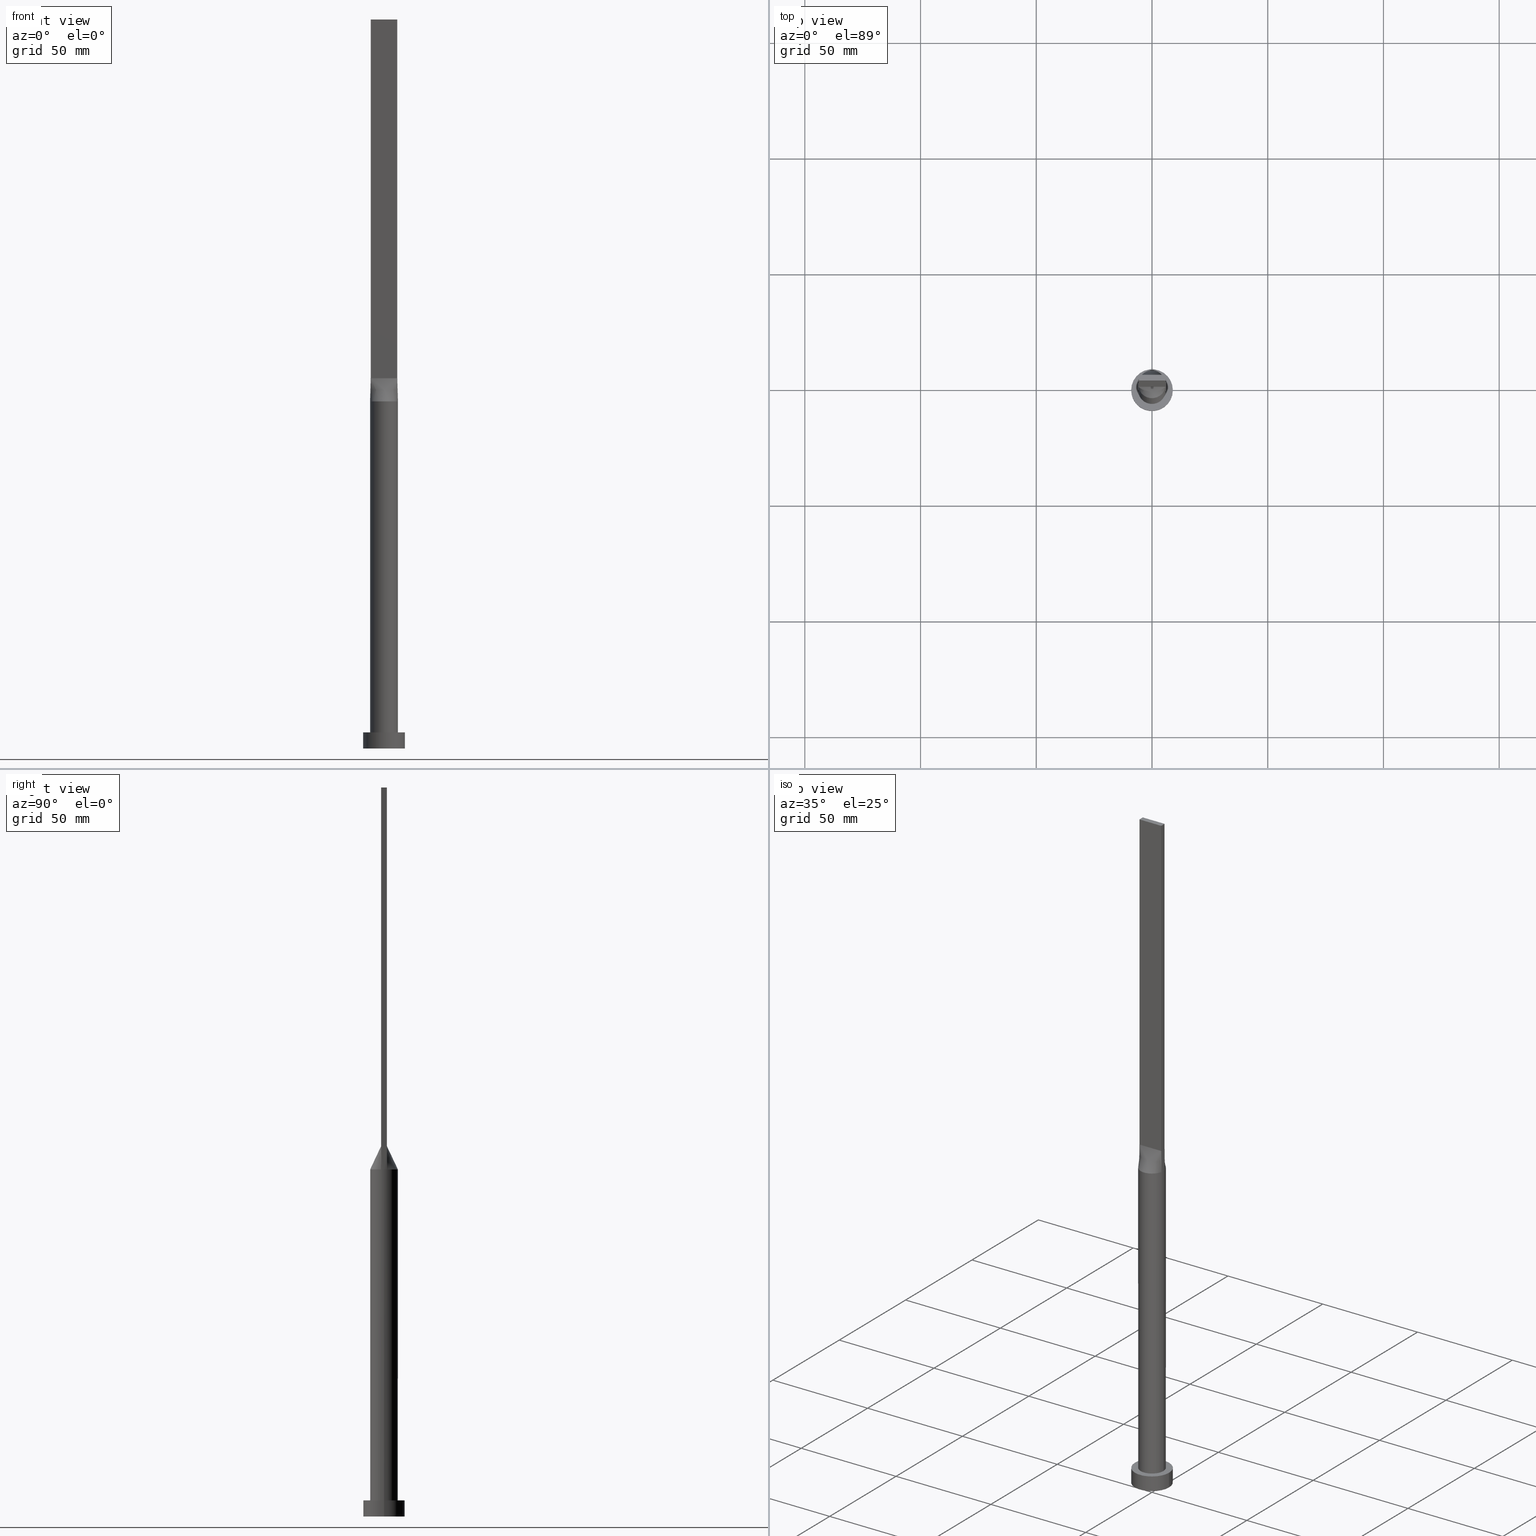
[diagram: canonical four-view strip — front | top / right | iso, engineering-drawing reading convention]
A machine part, canonical four-view strip (front | top / right | iso — engineering-drawing reading convention). The complete STEP part file that produces these views, byte-faithful:
ISO-10303-21;
HEADER;
FILE_DESCRIPTION (( 'STEP AP203' ),
    '1' );
FILE_NAME ('14fa.STEP',
    '2023-02-13T08:50:19',
    ( '' ),
    ( '' ),
    'SwSTEP 2.0',
    'SolidWorks 2019',
    '' );
FILE_SCHEMA (( 'CONFIG_CONTROL_DESIGN' ));
ENDSEC;

DATA;
#1 = UNCERTAINTY_MEASURE_WITH_UNIT (LENGTH_MEASURE( 1.000000000000000082E-05 ), #496, 'distance_accuracy_value', 'NONE');
#2 = B_SPLINE_SURFACE_WITH_KNOTS ( 'NONE', 3, 1, ( 
 ( #197, #153 ),
 ( #423, #15 ),
 ( #568, #446 ),
 ( #136, #311 ),
 ( #493, #316 ),
 ( #399, #82 ) ),
 .UNSPECIFIED., .F., .F., .F.,
 ( 4, 2, 4 ),
 ( 2, 2 ),
 ( 0.000000000000000000, 0.5000000000000000000, 1.000000000000000000 ),
 ( 0.000000000000000000, 1.000000000000000000 ),
 .UNSPECIFIED. ) ;
#3 = CARTESIAN_POINT ( 'NONE',  ( 0.000000000000000000, 0.000000000000000000, 7.000000000000000000 ) ) ;
#4 = CALENDAR_DATE ( 2023, 13, 2 ) ;
#5 = CARTESIAN_POINT ( 'NONE',  ( -6.000000000000000888, -0.4297636735037110300, 149.9999999999999716 ) ) ;
#6 = ADVANCED_FACE ( 'NONE', ( #400 ), #267, .F. ) ;
#7 = DIRECTION ( 'NONE',  ( -0.01130506171853810915, -0.002457622112725658253, 0.9999330755971076456 ) ) ;
#8 = CARTESIAN_POINT ( 'NONE',  ( 1.587717880441006368, -5.799853445840308375, 150.0000000000000568 ) ) ;
#9 = DIRECTION ( 'NONE',  ( 1.000000000000000000, 0.000000000000000000, -0.000000000000000000 ) ) ;
#10 = CARTESIAN_POINT ( 'NONE',  ( -5.750000000000000000, 1.250000000000000222, 160.0000000000000000 ) ) ;
#11 = CIRCLE ( 'NONE', #28, 6.000000000000000888 ) ;
#12 = CARTESIAN_POINT ( 'NONE',  ( -5.750000000000000000, -1.249999999999999112, 160.0000000000000000 ) ) ;
#13 = APPROVAL_STATUS ( 'not_yet_approved' ) ;
#14 = CARTESIAN_POINT ( 'NONE',  ( -1.966519853258819506, -5.681792876789066860, 150.0000000000000000 ) ) ;
#15 = CARTESIAN_POINT ( 'NONE',  ( 5.750000000000000000, -0.8333333333333317050, 159.9999999999999716 ) ) ;
#16 = ADVANCED_FACE ( 'NONE', ( #218 ), #185, .T. ) ;
#17 = CARTESIAN_POINT ( 'NONE',  ( -5.759267569818394605, -1.752014689090954480, 150.0000000000000000 ) ) ;
#18 = CARTESIAN_POINT ( 'NONE',  ( 1.966519853258819062, 5.681792876789066860, 150.0000000000000000 ) ) ;
#19 = ORIENTED_EDGE ( 'NONE', *, *, #465, .T. ) ;
#20 = CIRCLE ( 'NONE', #209, 6.000000000000000888 ) ;
#21 = VECTOR ( 'NONE', #221, 1000.000000000000000 ) ;
#22 = CARTESIAN_POINT ( 'NONE',  ( 5.750000000000000000, 1.250000000000000222, 160.0000000000000000 ) ) ;
#23 = ORIENTED_EDGE ( 'NONE', *, *, #42, .F. ) ;
#24 = CC_DESIGN_DATE_AND_TIME_ASSIGNMENT ( #132, #490, ( #470 ) ) ;
#25 = PLANE ( 'NONE',  #562 ) ;
#26 = CARTESIAN_POINT ( 'NONE',  ( -1.966519853258818173, 5.681792876789067748, 150.0000000000000000 ) ) ;
#27 = ORIENTED_EDGE ( 'NONE', *, *, #293, .T. ) ;
#28 = AXIS2_PLACEMENT_3D ( 'NONE', #3, #598, #52 ) ;
#29 = CARTESIAN_POINT ( 'NONE',  ( -5.038190104264874236, 3.311355329404293446, 149.9999999999999716 ) ) ;
#30 = SECURITY_CLASSIFICATION_LEVEL ( 'unclassified' ) ;
#31 = ORIENTED_EDGE ( 'NONE', *, *, #489, .F. ) ;
#32 = CARTESIAN_POINT ( 'NONE',  ( -5.863058183536805856, 1.274577865986265435, 150.0000000000000000 ) ) ;
#33 = DIRECTION ( 'NONE',  ( 0.000000000000000000, 0.000000000000000000, 1.000000000000000000 ) ) ;
#34 = CARTESIAN_POINT ( 'NONE',  ( 5.750000000000000000, 1.250000000000000222, 160.0000000000000000 ) ) ;
#35 = APPROVAL_STATUS ( 'not_yet_approved' ) ;
#36 = VERTEX_POINT ( 'NONE', #258 ) ;
#37 = AXIS2_PLACEMENT_3D ( 'NONE', #298, #110, #471 ) ;
#38 = VECTOR ( 'NONE', #374, 1000.000000000000000 ) ;
#39 = CARTESIAN_POINT ( 'NONE',  ( 2.395833333333330817, 1.250000000000000222, 159.9999999999999716 ) ) ;
#40 = MECHANICAL_CONTEXT ( 'NONE', #514, 'mechanical' ) ;
#41 = CARTESIAN_POINT ( 'NONE',  ( 0.000000000000000000, 0.000000000000000000, 150.0000000000000000 ) ) ;
#42 = EDGE_CURVE ( 'NONE', #318, #141, #302, .T. ) ;
#43 = CARTESIAN_POINT ( 'NONE',  ( 5.270833333333333037, 1.250000000000000222, 159.9999999999999716 ) ) ;
#44 = APPLICATION_PROTOCOL_DEFINITION ( 'international standard', 'config_control_design', 1994, #514 ) ;
#45 = ORIENTED_EDGE ( 'NONE', *, *, #206, .T. ) ;
#46 = CARTESIAN_POINT ( 'NONE',  ( 0.000000000000000000, 0.000000000000000000, 150.0000000000000000 ) ) ;
#47 = ORIENTED_EDGE ( 'NONE', *, *, #354, .F. ) ;
#48 = LINE ( 'NONE', #468, #476 ) ;
#49 = EDGE_CURVE ( 'NONE', #201, #250, #263, .T. ) ;
#50 = CARTESIAN_POINT ( 'NONE',  ( -5.953310891118034576, 0.8594154111126165452, 150.0000000000000568 ) ) ;
#51 = LOCAL_TIME ( 9, 50, 19.00000000000000000, #228 ) ;
#52 = DIRECTION ( 'NONE',  ( 1.000000000000000000, 0.000000000000000000, 0.000000000000000000 ) ) ;
#53 = CARTESIAN_POINT ( 'NONE',  ( -3.660567483996338911, -4.804269179125217448, 150.0000000000000284 ) ) ;
#54 = CARTESIAN_POINT ( 'NONE',  ( -3.037647739454305551, -5.231880992812856235, 150.0000000000000000 ) ) ;
#55 = CARTESIAN_POINT ( 'NONE',  ( -5.750000000000000000, -1.249999999999999112, 315.0000000000000000 ) ) ;
#56 = CARTESIAN_POINT ( 'NONE',  ( 0.8058840496048923496, -5.959001506938069070, 150.0000000000000000 ) ) ;
#57 = AXIS2_PLACEMENT_3D ( 'NONE', #348, #266, #450 ) ;
#58 = EDGE_CURVE ( 'NONE', #391, #299, #20, .T. ) ;
#59 = CARTESIAN_POINT ( 'NONE',  ( 5.863058287509796074, -1.274577880478293901, 150.0000000000000000 ) ) ;
#60 = CARTESIAN_POINT ( 'NONE',  ( 3.037647739454303331, -5.231880992812857123, 150.0000000000000568 ) ) ;
#61 = FACE_OUTER_BOUND ( 'NONE', #342, .T. ) ;
#62 = ORIENTED_EDGE ( 'NONE', *, *, #393, .T. ) ;
#63 = CARTESIAN_POINT ( 'NONE',  ( 0.000000000000000000, 0.000000000000000000, 7.000000000000000000 ) ) ;
#64 = EDGE_CURVE ( 'NONE', #480, #382, #85, .T. ) ;
#65 = EDGE_LOOP ( 'NONE', ( #83, #169 ) ) ;
#66 = AXIS2_PLACEMENT_3D ( 'NONE', #194, #231, #554 ) ;
#67 = CIRCLE ( 'NONE', #485, 6.000000000000000888 ) ;
#68 = FACE_OUTER_BOUND ( 'NONE', #159, .T. ) ;
#69 = ORIENTED_EDGE ( 'NONE', *, *, #268, .F. ) ;
#70 = LINE ( 'NONE', #527, #116 ) ;
#71 = ORIENTED_EDGE ( 'NONE', *, *, #157, .T. ) ;
#72 = DIRECTION ( 'NONE',  ( -1.000000000000000000, 0.000000000000000000, 0.000000000000000000 ) ) ;
#73 = ORIENTED_EDGE ( 'NONE', *, *, #570, .T. ) ;
#74 = AXIS2_PLACEMENT_3D ( 'NONE', #195, #517, #138 ) ;
#75 = ADVANCED_FACE ( 'NONE', ( #215 ), #397, .F. ) ;
#76 = CARTESIAN_POINT ( 'NONE',  ( -5.586898165904732316, 2.266054396544148197, 150.0000000000000000 ) ) ;
#77 = COORDINATED_UNIVERSAL_TIME_OFFSET ( 1, 0, .AHEAD. ) ;
#78 = DIRECTION ( 'NONE',  ( -1.000000000000000000, 0.000000000000000000, 0.000000000000000000 ) ) ;
#79 = CARTESIAN_POINT ( 'NONE',  ( 5.038190104264874236, 3.311355329404293002, 150.0000000000000284 ) ) ;
#80 = LINE ( 'NONE', #127, #428 ) ;
#81 = FACE_OUTER_BOUND ( 'NONE', #312, .T. ) ;
#82 = CARTESIAN_POINT ( 'NONE',  ( 5.750000000000000000, 1.250000000000000222, 160.0000000000000000 ) ) ;
#83 = ORIENTED_EDGE ( 'NONE', *, *, #64, .T. ) ;
#84 = EDGE_CURVE ( 'NONE', #500, #250, #80, .T. ) ;
#85 = CIRCLE ( 'NONE', #96, 9.000000000000000000 ) ;
#86 = CIRCLE ( 'NONE', #145, 6.000000000000000888 ) ;
#87 = CARTESIAN_POINT ( 'NONE',  ( -0.4029827085191223790, 5.999999999999998224, 150.0000000000000284 ) ) ;
#88 = VERTEX_POINT ( 'NONE', #491 ) ;
#89 = CARTESIAN_POINT ( 'NONE',  ( -1.197916666666668739, 1.250000000000000222, 160.0000000000000000 ) ) ;
#90 = DATE_AND_TIME ( #214, #264 ) ;
#91 = ORIENTED_EDGE ( 'NONE', *, *, #199, .F. ) ;
#92 = APPROVAL ( #499, 'NEUR�EN�' ) ;
#93 = DIRECTION ( 'NONE',  ( 1.000000000000000000, -5.656706986880892860E-17, 0.000000000000000000 ) ) ;
#94 = CARTESIAN_POINT ( 'NONE',  ( -5.750000000000000000, 0.4166666666666722363, 159.9999999999999716 ) ) ;
#95 = ORIENTED_EDGE ( 'NONE', *, *, #84, .F. ) ;
#96 = AXIS2_PLACEMENT_3D ( 'NONE', #454, #33, #590 ) ;
#97 = APPROVAL_DATE_TIME ( #416, #186 ) ;
#98 = CARTESIAN_POINT ( 'NONE',  ( -5.953310891118033688, -0.8594154111126154350, 150.0000000000000000 ) ) ;
#99 = AXIS2_PLACEMENT_3D ( 'NONE', #63, #430, #292 ) ;
#100 = DIRECTION ( 'NONE',  ( -0.000000000000000000, -0.000000000000000000, -1.000000000000000000 ) ) ;
#101 = CARTESIAN_POINT ( 'NONE',  ( 0.4029827085191214908, -6.000000000000000888, 150.0000000000000284 ) ) ;
#102 = CARTESIAN_POINT ( 'NONE',  ( 0.000000000000000000, 0.000000000000000000, 0.000000000000000000 ) ) ;
#103 = CARTESIAN_POINT ( 'NONE',  ( -5.750000000000000000, 1.250000000000000222, 160.0000000000000000 ) ) ;
#104 = EDGE_CURVE ( 'NONE', #250, #360, #176, .T. ) ;
#105 = CARTESIAN_POINT ( 'NONE',  ( -9.000000000000000000, 0.000000000000000000, 7.000000000000000000 ) ) ;
#106 = CARTESIAN_POINT ( 'NONE',  ( 0.4791666666666659635, -1.249999999999999556, 159.9999999999999716 ) ) ;
#107 = CIRCLE ( 'NONE', #475, 6.000000000000000888 ) ;
#108 = VECTOR ( 'NONE', #167, 1000.000000000000000 ) ;
#109 = DIRECTION ( 'NONE',  ( -0.000000000000000000, -0.000000000000000000, -1.000000000000000000 ) ) ;
#110 = DIRECTION ( 'NONE',  ( 0.000000000000000000, 0.000000000000000000, 1.000000000000000000 ) ) ;
#111 = ADVANCED_FACE ( 'NONE', ( #561, #236 ), #467, .T. ) ;
#112 = CARTESIAN_POINT ( 'NONE',  ( -5.586898165904732316, 2.266054396544148197, 150.0000000000000000 ) ) ;
#113 = ORIENTED_EDGE ( 'NONE', *, *, #58, .T. ) ;
#114 = CARTESIAN_POINT ( 'NONE',  ( -5.750000000000000000, 1.250000000000000222, 160.0000000000000000 ) ) ;
#115 = EDGE_LOOP ( 'NONE', ( #118, #27, #137, #69, #247 ) ) ;
#116 = VECTOR ( 'NONE', #251, 1000.000000000000000 ) ;
#117 = CARTESIAN_POINT ( 'NONE',  ( -4.659826596530312948, 3.842755878357679844, 150.0000000000000000 ) ) ;
#118 = ORIENTED_EDGE ( 'NONE', *, *, #551, .T. ) ;
#119 = CARTESIAN_POINT ( 'NONE',  ( -6.000000000000000888, 0.000000000000000000, 150.0000000000000000 ) ) ;
#120 = VERTEX_POINT ( 'NONE', #368 ) ;
#121 = ADVANCED_FACE ( 'NONE', ( #558 ), #413, .T. ) ;
#122 = LINE ( 'NONE', #310, #21 ) ;
#123 = CARTESIAN_POINT ( 'NONE',  ( -5.750000000000000000, 1.250000000000000222, 315.0000000000000000 ) ) ;
#124 = DIRECTION ( 'NONE',  ( -0.000000000000000000, -0.000000000000000000, -1.000000000000000000 ) ) ;
#125 = CC_DESIGN_SECURITY_CLASSIFICATION ( #303, ( #334 ) ) ;
#126 = DIRECTION ( 'NONE',  ( 1.000000000000000000, 0.000000000000000000, 0.000000000000000000 ) ) ;
#127 = CARTESIAN_POINT ( 'NONE',  ( -5.750000000000000000, 1.250000000000000222, 160.0000000000000000 ) ) ;
#128 = CARTESIAN_POINT ( 'NONE',  ( 4.791666666666666075, 1.250000000000000222, 159.9999999999999716 ) ) ;
#129 = CC_DESIGN_PERSON_AND_ORGANIZATION_ASSIGNMENT ( #407, #538, ( #470 ) ) ;
#130 = DIRECTION ( 'NONE',  ( 1.000000000000000000, 0.000000000000000000, -0.000000000000000000 ) ) ;
#131 = DIRECTION ( 'NONE',  ( -1.000000000000000000, 0.000000000000000000, 0.000000000000000000 ) ) ;
#132 = DATE_AND_TIME ( #305, #571 ) ;
#133 = CARTESIAN_POINT ( 'NONE',  ( 5.750000000000000000, -1.249999999999999778, 315.0000000000000000 ) ) ;
#134 = VECTOR ( 'NONE', #131, 1000.000000000000000 ) ;
#135 = CARTESIAN_POINT ( 'NONE',  ( -1.587717880441007035, 5.799853445840308375, 150.0000000000000568 ) ) ;
#136 = CARTESIAN_POINT ( 'NONE',  ( 6.000000000000000888, 0.4297636735037115296, 149.9999999999999716 ) ) ;
#137 = ORIENTED_EDGE ( 'NONE', *, *, #376, .T. ) ;
#138 = DIRECTION ( 'NONE',  ( 1.000000000000000000, 0.000000000000000000, -0.000000000000000000 ) ) ;
#139 = CARTESIAN_POINT ( 'NONE',  ( 5.038190104264874236, -3.311355329404293890, 149.9999999999999716 ) ) ;
#140 = ADVANCED_FACE ( 'NONE', ( #460 ), #147, .T. ) ;
#141 = VERTEX_POINT ( 'NONE', #521 ) ;
#142 = CARTESIAN_POINT ( 'NONE',  ( 0.000000000000000000, 0.000000000000000000, 315.0000000000000000 ) ) ;
#143 = CARTESIAN_POINT ( 'NONE',  ( -0.8058840496048947921, -5.959001506938068182, 150.0000000000000568 ) ) ;
#144 = DIRECTION ( 'NONE',  ( 0.000000000000000000, 0.000000000000000000, 1.000000000000000000 ) ) ;
#145 = AXIS2_PLACEMENT_3D ( 'NONE', #276, #421, #553 ) ;
#146 = CARTESIAN_POINT ( 'NONE',  ( -4.659826596530313836, -3.842755878357677179, 150.0000000000000284 ) ) ;
#147 = B_SPLINE_SURFACE_WITH_KNOTS ( 'NONE', 3, 1, ( 
 ( #504, #103 ),
 ( #50, #190 ),
 ( #414, #94 ),
 ( #5, #188 ),
 ( #98, #438 ),
 ( #335, #381 ) ),
 .UNSPECIFIED., .F., .F., .F.,
 ( 4, 2, 4 ),
 ( 2, 2 ),
 ( 0.000000000000000000, 0.5000000000000000000, 1.000000000000000000 ),
 ( 0.000000000000000000, 1.000000000000000000 ),
 .UNSPECIFIED. ) ;
#148 = CARTESIAN_POINT ( 'NONE',  ( 0.000000000000000000, 0.000000000000000000, 150.0000000000000000 ) ) ;
#149 = EDGE_CURVE ( 'NONE', #201, #391, #107, .T. ) ;
#150 = CARTESIAN_POINT ( 'NONE',  ( 5.270833333333333037, -1.249999999999999778, 159.9999999999999716 ) ) ;
#151 = CYLINDRICAL_SURFACE ( 'NONE', #275, 6.000000000000000888 ) ;
#152 = CARTESIAN_POINT ( 'NONE',  ( -4.791666666666666963, -1.249999999999999112, 160.0000000000000000 ) ) ;
#153 = CARTESIAN_POINT ( 'NONE',  ( 5.750000000000000000, -1.249999999999999778, 160.0000000000000000 ) ) ;
#154 = DIRECTION ( 'NONE',  ( 0.000000000000000000, 0.000000000000000000, 1.000000000000000000 ) ) ;
#155 = CLOSED_SHELL ( 'NONE', ( #383, #256, #16, #111, #535, #227, #121, #576, #140, #338, #75, #6, #420, #172, #528 ) ) ;
#156 = CC_DESIGN_APPROVAL ( #92, ( #470 ) ) ;
#157 = EDGE_CURVE ( 'NONE', #391, #120, #287, .T. ) ;
#158 = CARTESIAN_POINT ( 'NONE',  ( -0.4029827085191223790, 5.999999999999998224, 150.0000000000000284 ) ) ;
#159 = EDGE_LOOP ( 'NONE', ( #431, #405, #23, #178 ) ) ;
#160 = CARTESIAN_POINT ( 'NONE',  ( 5.759267569818392829, 1.752014689090955590, 150.0000000000000568 ) ) ;
#161 = VERTEX_POINT ( 'NONE', #162 ) ;
#162 = CARTESIAN_POINT ( 'NONE',  ( -9.000000000000000000, 0.000000000000000000, 0.000000000000000000 ) ) ;
#163 = ORIENTED_EDGE ( 'NONE', *, *, #559, .T. ) ;
#164 = CC_DESIGN_APPROVAL ( #436, ( #334 ) ) ;
#165 = LINE ( 'NONE', #22, #587 ) ;
#166 = ORIENTED_EDGE ( 'NONE', *, *, #199, .T. ) ;
#167 = DIRECTION ( 'NONE',  ( -0.000000000000000000, -0.000000000000000000, -1.000000000000000000 ) ) ;
#168 =( NAMED_UNIT ( * ) PLANE_ANGLE_UNIT ( ) SI_UNIT ( $, .RADIAN. ) );
#169 = ORIENTED_EDGE ( 'NONE', *, *, #277, .T. ) ;
#170 = CARTESIAN_POINT ( 'NONE',  ( -5.270833333333333925, 1.250000000000000222, 159.9999999999999716 ) ) ;
#171 = ORIENTED_EDGE ( 'NONE', *, *, #426, .T. ) ;
#172 = ADVANCED_FACE ( 'NONE', ( #68 ), #25, .F. ) ;
#173 = AXIS2_PLACEMENT_3D ( 'NONE', #102, #144, #189 ) ;
#174 = CARTESIAN_POINT ( 'NONE',  ( 0.4791666666666637986, 1.250000000000000222, 159.9999999999999716 ) ) ;
#175 = B_SPLINE_SURFACE_WITH_KNOTS ( 'NONE', 3, 1, ( 
 ( #304, #34 ),
 ( #445, #43 ),
 ( #456, #128 ),
 ( #79, #406 ),
 ( #223, #492 ),
 ( #216, #39 ),
 ( #259, #588 ),
 ( #307, #532 ),
 ( #453, #594 ),
 ( #177, #174 ),
 ( #396, #179 ),
 ( #87, #358 ),
 ( #350, #403 ),
 ( #135, #498 ),
 ( #540, #89 ),
 ( #591, #211 ),
 ( #392, #581 ),
 ( #345, #353 ),
 ( #585, #301 ),
 ( #76, #255 ),
 ( #442, #170 ),
 ( #32, #537 ) ),
 .UNSPECIFIED., .F., .F., .F.,
 ( 4, 2, 2, 2, 2, 2, 2, 2, 2, 2, 4 ),
 ( 2, 2 ),
 ( 0.000000000000000000, 0.1249999999999999722, 0.2499999999999999445, 0.3749999999999999445, 0.4374999999999999445, 0.4999999999999998890, 0.5624999999999998890, 0.6249999999999998890, 0.7499999999999997780, 0.8749999999999998890, 1.000000000000000000 ),
 ( 0.000000000000000000, 1.000000000000000000 ),
 .UNSPECIFIED. ) ;
#176 = LINE ( 'NONE', #10, #437 ) ;
#177 = CARTESIAN_POINT ( 'NONE',  ( 0.8058840496048939039, 5.959001506938069070, 150.0000000000000000 ) ) ;
#178 = ORIENTED_EDGE ( 'NONE', *, *, #321, .T. ) ;
#179 = CARTESIAN_POINT ( 'NONE',  ( 0.2395833333333302617, 1.250000000000000222, 160.0000000000000000 ) ) ;
#180 = APPROVAL_DATE_TIME ( #596, #436 ) ;
#181 = ORIENTED_EDGE ( 'NONE', *, *, #354, .T. ) ;
#182 = VECTOR ( 'NONE', #93, 1000.000000000000000 ) ;
#183 = LINE ( 'NONE', #461, #563 ) ;
#184 = PERSON_AND_ORGANIZATION ( #248, #601 ) ;
#185 = CYLINDRICAL_SURFACE ( 'NONE', #274, 9.000000000000000000 ) ;
#186 = APPROVAL ( #13, 'NEUR�EN�' ) ;
#187 = DIRECTION ( 'NONE',  ( 0.000000000000000000, 0.000000000000000000, 1.000000000000000000 ) ) ;
#188 = CARTESIAN_POINT ( 'NONE',  ( -5.750000000000000000, -0.4166666666666609675, 159.9999999999999716 ) ) ;
#189 = DIRECTION ( 'NONE',  ( 1.000000000000000000, 0.000000000000000000, 0.000000000000000000 ) ) ;
#190 = CARTESIAN_POINT ( 'NONE',  ( -5.750000000000000000, 0.8333333333333370341, 159.9999999999999716 ) ) ;
#191 = EDGE_CURVE ( 'NONE', #161, #483, #291, .T. ) ;
#192 = DIRECTION ( 'NONE',  ( 1.000000000000000000, 0.000000000000000000, 0.000000000000000000 ) ) ;
#193 = VECTOR ( 'NONE', #473, 1000.000000000000000 ) ;
#194 = CARTESIAN_POINT ( 'NONE',  ( 0.000000000000000000, 0.000000000000000000, 7.000000000000000000 ) ) ;
#195 = CARTESIAN_POINT ( 'NONE',  ( 0.000000000000000000, 0.000000000000000000, 0.000000000000000000 ) ) ;
#196 = CARTESIAN_POINT ( 'NONE',  ( -1.197916666666666075, -1.249999999999999334, 159.9999999999999716 ) ) ;
#197 = CARTESIAN_POINT ( 'NONE',  ( 5.863058183536806744, -1.274577865986263436, 150.0000000000000000 ) ) ;
#198 = CARTESIAN_POINT ( 'NONE',  ( 1.916666666666665408, -1.249999999999999778, 159.9999999999999716 ) ) ;
#199 = EDGE_CURVE ( 'NONE', #502, #201, #455, .T. ) ;
#200 = DIRECTION ( 'NONE',  ( 0.000000000000000000, 0.000000000000000000, 1.000000000000000000 ) ) ;
#201 = VERTEX_POINT ( 'NONE', #339 ) ;
#202 = DIRECTION ( 'NONE',  ( 1.000000000000000000, 0.000000000000000000, 0.000000000000000000 ) ) ;
#203 = ORIENTED_EDGE ( 'NONE', *, *, #402, .F. ) ;
#204 = CARTESIAN_POINT ( 'NONE',  ( 1.587717880441007479, 5.799853445840305710, 150.0000000000000000 ) ) ;
#205 = EDGE_LOOP ( 'NONE', ( #472, #113, #337, #365, #352 ) ) ;
#206 = EDGE_CURVE ( 'NONE', #294, #318, #70, .T. ) ;
#207 = CARTESIAN_POINT ( 'NONE',  ( 0.000000000000000000, 0.000000000000000000, 150.0000000000000000 ) ) ;
#208 = ORIENTED_EDGE ( 'NONE', *, *, #277, .F. ) ;
#209 = AXIS2_PLACEMENT_3D ( 'NONE', #41, #447, #444 ) ;
#210 = AXIS2_PLACEMENT_3D ( 'NONE', #207, #524, #72 ) ;
#211 = CARTESIAN_POINT ( 'NONE',  ( -1.916666666666668073, 1.250000000000000222, 160.0000000000000000 ) ) ;
#212 = ORIENTED_EDGE ( 'NONE', *, *, #313, .T. ) ;
#213 = CARTESIAN_POINT ( 'NONE',  ( 0.000000000000000000, 0.000000000000000000, 150.0000000000000000 ) ) ;
#214 = CALENDAR_DATE ( 2023, 13, 2 ) ;
#215 = FACE_OUTER_BOUND ( 'NONE', #290, .T. ) ;
#216 = CARTESIAN_POINT ( 'NONE',  ( 3.660567483996337579, 4.804269179125218336, 150.0000000000000284 ) ) ;
#217 = COORDINATED_UNIVERSAL_TIME_OFFSET ( 1, 0, .AHEAD. ) ;
#218 = FACE_OUTER_BOUND ( 'NONE', #451, .T. ) ;
#219 = VECTOR ( 'NONE', #432, 1000.000000000000000 ) ;
#220 = VECTOR ( 'NONE', #257, 1000.000000000000000 ) ;
#221 = DIRECTION ( 'NONE',  ( -0.000000000000000000, -0.000000000000000000, -1.000000000000000000 ) ) ;
#222 = DIRECTION ( 'NONE',  ( 0.000000000000000000, 1.000000000000000000, 0.000000000000000000 ) ) ;
#223 = CARTESIAN_POINT ( 'NONE',  ( 4.659826596530313836, 3.842755878357678068, 150.0000000000000284 ) ) ;
#224 = APPLICATION_PROTOCOL_DEFINITION ( 'international standard', 'config_control_design', 1994, #546 ) ;
#225 = ORIENTED_EDGE ( 'NONE', *, *, #49, .T. ) ;
#226 = DIRECTION ( 'NONE',  ( 0.000000000000000000, 0.000000000000000000, 1.000000000000000000 ) ) ;
#227 = ADVANCED_FACE ( 'NONE', ( #61 ), #246, .T. ) ;
#228 = COORDINATED_UNIVERSAL_TIME_OFFSET ( 1, 0, .AHEAD. ) ;
#229 = ORIENTED_EDGE ( 'NONE', *, *, #501, .F. ) ;
#230 = CIRCLE ( 'NONE', #173, 9.000000000000000000 ) ;
#231 = DIRECTION ( 'NONE',  ( 0.000000000000000000, 0.000000000000000000, 1.000000000000000000 ) ) ;
#232 = FACE_OUTER_BOUND ( 'NONE', #288, .T. ) ;
#233 = CARTESIAN_POINT ( 'NONE',  ( -5.586898165904734093, -2.266054396544145533, 150.0000000000000000 ) ) ;
#234 = CC_DESIGN_PERSON_AND_ORGANIZATION_ASSIGNMENT ( #443, #582, ( #357 ) ) ;
#235 = DIRECTION ( 'NONE',  ( 0.000000000000000000, 0.000000000000000000, 1.000000000000000000 ) ) ;
#236 = FACE_OUTER_BOUND ( 'NONE', #65, .T. ) ;
#237 = DIRECTION ( 'NONE',  ( -1.000000000000000000, 5.656706986880894093E-17, 0.000000000000000000 ) ) ;
#238 = AXIS2_PLACEMENT_3D ( 'NONE', #600, #130, #545 ) ;
#239 = LOCAL_TIME ( 9, 50, 19.00000000000000000, #375 ) ;
#240 = CARTESIAN_POINT ( 'NONE',  ( 1.197916666666666075, -1.249999999999999778, 159.9999999999999716 ) ) ;
#241 = FACE_OUTER_BOUND ( 'NONE', #115, .T. ) ;
#242 = CARTESIAN_POINT ( 'NONE',  ( 0.9583333333333325932, -1.249999999999999556, 159.9999999999999716 ) ) ;
#243 = EDGE_CURVE ( 'NONE', #36, #88, #244, .T. ) ;
#244 = LINE ( 'NONE', #425, #193 ) ;
#245 = ORIENTED_EDGE ( 'NONE', *, *, #393, .F. ) ;
#246 = CYLINDRICAL_SURFACE ( 'NONE', #210, 6.000000000000000888 ) ;
#247 = ORIENTED_EDGE ( 'NONE', *, *, #448, .F. ) ;
#248 = PERSON ( 'NEUR�EN�', 'NEUR�EN�', 'NEUR�EN�', ('NEUR�EN�'), ('NEUR�EN�'), ('NEUR�EN�') ) ;
#249 = DIRECTION ( 'NONE',  ( 0.000000000000000000, 0.000000000000000000, 1.000000000000000000 ) ) ;
#250 = VERTEX_POINT ( 'NONE', #114 ) ;
#251 = DIRECTION ( 'NONE',  ( 1.000000000000000000, -5.656706986880892860E-17, 0.000000000000000000 ) ) ;
#252 = ORIENTED_EDGE ( 'NONE', *, *, #191, .F. ) ;
#253 = FACE_OUTER_BOUND ( 'NONE', #410, .T. ) ;
#254 = ORIENTED_EDGE ( 'NONE', *, *, #293, .F. ) ;
#255 = CARTESIAN_POINT ( 'NONE',  ( -4.791666666666666963, 1.250000000000000222, 159.9999999999999716 ) ) ;
#256 = ADVANCED_FACE ( 'NONE', ( #253 ), #389, .T. ) ;
#257 = DIRECTION ( 'NONE',  ( -0.000000000000000000, -0.000000000000000000, -1.000000000000000000 ) ) ;
#258 = CARTESIAN_POINT ( 'NONE',  ( 6.000000000000000888, 6.923844231069229210E-17, 149.9999999999999716 ) ) ;
#259 = CARTESIAN_POINT ( 'NONE',  ( 3.037647739454305995, 5.231880992812856235, 150.0000000000000568 ) ) ;
#260 = ORIENTED_EDGE ( 'NONE', *, *, #570, .F. ) ;
#261 = DIRECTION ( 'NONE',  ( 1.000000000000000000, 0.000000000000000000, 0.000000000000000000 ) ) ;
#262 = LINE ( 'NONE', #123, #220 ) ;
#263 = LINE ( 'NONE', #487, #388 ) ;
#264 = LOCAL_TIME ( 9, 50, 19.00000000000000000, #394 ) ;
#265 = DIRECTION ( 'NONE',  ( 0.000000000000000000, 0.000000000000000000, 1.000000000000000000 ) ) ;
#266 = DIRECTION ( 'NONE',  ( 0.000000000000000000, 0.000000000000000000, 1.000000000000000000 ) ) ;
#267 = PLANE ( 'NONE',  #238 ) ;
#268 = EDGE_CURVE ( 'NONE', #549, #500, #165, .T. ) ;
#269 = CARTESIAN_POINT ( 'NONE',  ( -9.000000000000000000, 0.000000000000000000, 7.000000000000000000 ) ) ;
#270 = ORIENTED_EDGE ( 'NONE', *, *, #64, .F. ) ;
#271 = CARTESIAN_POINT ( 'NONE',  ( 5.750000000000000000, 1.250000000000000222, 160.0000000000000000 ) ) ;
#272 = CARTESIAN_POINT ( 'NONE',  ( -1.916666666666666075, -1.249999999999999334, 159.9999999999999716 ) ) ;
#273 = EDGE_LOOP ( 'NONE', ( #254, #474, #580, #408, #597, #91 ) ) ;
#274 = AXIS2_PLACEMENT_3D ( 'NONE', #364, #124, #78 ) ;
#275 = AXIS2_PLACEMENT_3D ( 'NONE', #148, #100, #466 ) ;
#276 = CARTESIAN_POINT ( 'NONE',  ( 0.000000000000000000, 0.000000000000000000, 150.0000000000000000 ) ) ;
#277 = EDGE_CURVE ( 'NONE', #382, #480, #429, .T. ) ;
#278 = CARTESIAN_POINT ( 'NONE',  ( -0.4029827085191233227, -6.000000000000000000, 150.0000000000000568 ) ) ;
#279 = DIRECTION ( 'NONE',  ( -0.01130506171853802241, 0.002457622112726070250, 0.9999330755971076456 ) ) ;
#280 = CARTESIAN_POINT ( 'NONE',  ( 5.750000000000000000, -1.249999999999999778, 160.0000000000000000 ) ) ;
#281 = CARTESIAN_POINT ( 'NONE',  ( -5.750000000000000000, -1.249999999999999112, 315.0000000000000000 ) ) ;
#282 = DIRECTION ( 'NONE',  ( 0.000000000000000000, -1.000000000000000000, 0.000000000000000000 ) ) ;
#283 = CARTESIAN_POINT ( 'NONE',  ( 5.750000000000000000, -1.249999999999999778, 160.0000000000000000 ) ) ;
#284 = CIRCLE ( 'NONE', #361, 6.000000000000000888 ) ;
#285 = CARTESIAN_POINT ( 'NONE',  ( -5.750000000000000000, -1.249999999999999112, 160.0000000000000000 ) ) ;
#286 = CC_DESIGN_DATE_AND_TIME_ASSIGNMENT ( #557, #599, ( #303 ) ) ;
#287 = LINE ( 'NONE', #119, #219 ) ;
#288 = EDGE_LOOP ( 'NONE', ( #19, #395, #523, #181 ) ) ;
#289 = CARTESIAN_POINT ( 'NONE',  ( -5.759267569818392829, 1.752014689090956256, 150.0000000000000000 ) ) ;
#290 = EDGE_LOOP ( 'NONE', ( #433, #525, #344, #212 ) ) ;
#291 = CIRCLE ( 'NONE', #37, 9.000000000000000000 ) ;
#292 = DIRECTION ( 'NONE',  ( -1.000000000000000000, 0.000000000000000000, 0.000000000000000000 ) ) ;
#293 = EDGE_CURVE ( 'NONE', #36, #502, #284, .T. ) ;
#294 = VERTEX_POINT ( 'NONE', #449 ) ;
#295 = CARTESIAN_POINT ( 'NONE',  ( 4.659826596530313836, 3.842755878357678068, 150.0000000000000284 ) ) ;
#296 = ADVANCED_BREP_SHAPE_REPRESENTATION ( '14fa', ( #333, #57 ), #519 ) ;
#297 = EDGE_LOOP ( 'NONE', ( #427, #171, #45, #578 ) ) ;
#298 = CARTESIAN_POINT ( 'NONE',  ( 0.000000000000000000, 0.000000000000000000, 0.000000000000000000 ) ) ;
#299 = VERTEX_POINT ( 'NONE', #484 ) ;
#300 = EDGE_CURVE ( 'NONE', #480, #161, #543, .T. ) ;
#301 = CARTESIAN_POINT ( 'NONE',  ( -3.833333333333333481, 1.250000000000000222, 159.9999999999999716 ) ) ;
#302 = LINE ( 'NONE', #133, #536 ) ;
#303 = SECURITY_CLASSIFICATION ( '', '', #30 ) ;
#304 = CARTESIAN_POINT ( 'NONE',  ( 5.863058183536806744, 1.274577865986262104, 150.0000000000000000 ) ) ;
#305 = CALENDAR_DATE ( 2023, 13, 2 ) ;
#306 = DIRECTION ( 'NONE',  ( -1.000000000000000000, -0.000000000000000000, -0.000000000000000000 ) ) ;
#307 = CARTESIAN_POINT ( 'NONE',  ( 1.966519853258819062, 5.681792876789066860, 150.0000000000000000 ) ) ;
#308 = PERSON_AND_ORGANIZATION_ROLE ( 'design_supplier' ) ;
#309 = EDGE_LOOP ( 'NONE', ( #245, #31 ) ) ;
#310 = CARTESIAN_POINT ( 'NONE',  ( 5.750000000000000000, 1.250000000000000222, 315.0000000000000000 ) ) ;
#311 = CARTESIAN_POINT ( 'NONE',  ( 5.750000000000000000, 0.4166666666666690721, 159.9999999999999716 ) ) ;
#312 = EDGE_LOOP ( 'NONE', ( #166, #225, #95, #555 ) ) ;
#313 = EDGE_CURVE ( 'NONE', #141, #500, #122, .T. ) ;
#314 = AXIS2_PLACEMENT_3D ( 'NONE', #142, #235, #9 ) ;
#315 = CARTESIAN_POINT ( 'NONE',  ( 5.750000000000000000, 1.250000000000000222, 315.0000000000000000 ) ) ;
#316 = CARTESIAN_POINT ( 'NONE',  ( 5.750000000000000000, 0.8333333333333350357, 159.9999999999999716 ) ) ;
#317 = ORIENTED_EDGE ( 'NONE', *, *, #501, .T. ) ;
#318 = VERTEX_POINT ( 'NONE', #398 ) ;
#319 = LINE ( 'NONE', #458, #38 ) ;
#320 = CARTESIAN_POINT ( 'NONE',  ( 3.833333333333331705, -1.249999999999999778, 159.9999999999999716 ) ) ;
#321 = EDGE_CURVE ( 'NONE', #318, #549, #547, .T. ) ;
#322 = CARTESIAN_POINT ( 'NONE',  ( 5.806529091768402928, -1.262288932993132828, 155.0000000000000000 ) ) ;
#323 = CARTESIAN_POINT ( 'NONE',  ( 4.791666666666666075, -1.249999999999999778, 159.9999999999999716 ) ) ;
#324 = VECTOR ( 'NONE', #279, 1000.000000000000114 ) ;
#325 = FACE_OUTER_BOUND ( 'NONE', #273, .T. ) ;
#326 = CARTESIAN_POINT ( 'NONE',  ( 1.966519853258817729, -5.681792876789067748, 150.0000000000000000 ) ) ;
#327 = CARTESIAN_POINT ( 'NONE',  ( -5.750000000000000000, 1.250000000000000222, 315.0000000000000000 ) ) ;
#328 = CARTESIAN_POINT ( 'NONE',  ( 5.863058183536805856, -1.274577865986266101, 150.0000000000000000 ) ) ;
#329 = CARTESIAN_POINT ( 'NONE',  ( 5.863058183536806744, 1.274577865986262326, 150.0000000000000000 ) ) ;
#330 = CARTESIAN_POINT ( 'NONE',  ( -0.4791666666666669627, -1.249999999999999334, 159.9999999999999716 ) ) ;
#331 = EDGE_CURVE ( 'NONE', #141, #435, #488, .T. ) ;
#332 = DIRECTION ( 'NONE',  ( -0.01130506171853810915, -0.002457622112725679937, -0.9999330755971076456 ) ) ;
#333 = MANIFOLD_SOLID_BREP ( 'P�idat vysunut�m5', #155 ) ;
#334 = PRODUCT_DEFINITION_FORMATION_WITH_SPECIFIED_SOURCE ( 'LIBOVOLN�', '', #357, .NOT_KNOWN. ) ;
#335 = CARTESIAN_POINT ( 'NONE',  ( -5.863058183536806744, -1.274577865986261660, 150.0000000000000000 ) ) ;
#336 = CARTESIAN_POINT ( 'NONE',  ( -0.8058840496048931268, 5.959001506938069070, 150.0000000000000000 ) ) ;
#337 = ORIENTED_EDGE ( 'NONE', *, *, #559, .F. ) ;
#338 = ADVANCED_FACE ( 'NONE', ( #81 ), #175, .T. ) ;
#339 = CARTESIAN_POINT ( 'NONE',  ( -5.863058287509749888, 1.274577880478287017, 150.0000000000000000 ) ) ;
#340 = CARTESIAN_POINT ( 'NONE',  ( -3.037647739454304663, 5.231880992812857123, 150.0000000000000568 ) ) ;
#341 = CIRCLE ( 'NONE', #390, 6.000000000000000888 ) ;
#342 = EDGE_LOOP ( 'NONE', ( #534, #593, #229, #583, #71, #62 ) ) ;
#343 = CARTESIAN_POINT ( 'NONE',  ( 0.000000000000000000, 0.000000000000000000, 150.0000000000000000 ) ) ;
#344 = ORIENTED_EDGE ( 'NONE', *, *, #331, .F. ) ;
#345 = CARTESIAN_POINT ( 'NONE',  ( -4.659826596530312948, 3.842755878357679844, 150.0000000000000000 ) ) ;
#346 = EDGE_LOOP ( 'NONE', ( #252, #203 ) ) ;
#347 = DIRECTION ( 'NONE',  ( -0.000000000000000000, -0.000000000000000000, -1.000000000000000000 ) ) ;
#348 = CARTESIAN_POINT ( 'NONE',  ( 0.000000000000000000, 0.000000000000000000, 0.000000000000000000 ) ) ;
#349 = DIRECTION ( 'NONE',  ( 0.000000000000000000, -1.000000000000000000, 0.000000000000000000 ) ) ;
#350 = CARTESIAN_POINT ( 'NONE',  ( -0.8058840496048931268, 5.959001506938069070, 150.0000000000000000 ) ) ;
#351 = PERSON_AND_ORGANIZATION ( #248, #601 ) ;
#352 = ORIENTED_EDGE ( 'NONE', *, *, #49, .F. ) ;
#353 = CARTESIAN_POINT ( 'NONE',  ( -3.354166666666666963, 1.250000000000000222, 159.9999999999999716 ) ) ;
#354 = EDGE_CURVE ( 'NONE', #294, #360, #566, .T. ) ;
#355 = PERSON_AND_ORGANIZATION ( #248, #601 ) ;
#356 = ORIENTED_EDGE ( 'NONE', *, *, #465, .F. ) ;
#357 = PRODUCT ( '14fa', '14fa', '', ( #40 ) ) ;
#358 = CARTESIAN_POINT ( 'NONE',  ( -0.2395833333333362847, 1.250000000000000222, 160.0000000000000000 ) ) ;
#359 = PERSON_AND_ORGANIZATION_ROLE ( 'creator' ) ;
#360 = VERTEX_POINT ( 'NONE', #12 ) ;
#361 = AXIS2_PLACEMENT_3D ( 'NONE', #213, #265, #126 ) ;
#362 = CARTESIAN_POINT ( 'NONE',  ( 9.000000000000000000, 1.102182119232617714E-15, 7.000000000000000000 ) ) ;
#363 = APPROVAL_ROLE ( '' ) ;
#364 = CARTESIAN_POINT ( 'NONE',  ( 0.000000000000000000, 0.000000000000000000, 7.000000000000000000 ) ) ;
#365 = ORIENTED_EDGE ( 'NONE', *, *, #104, .F. ) ;
#366 = CARTESIAN_POINT ( 'NONE',  ( 9.000000000000000000, 1.102182119232617714E-15, 0.000000000000000000 ) ) ;
#367 = CALENDAR_DATE ( 2023, 13, 2 ) ;
#368 = CARTESIAN_POINT ( 'NONE',  ( -6.000000000000000888, 0.000000000000000000, 7.000000000000000000 ) ) ;
#369 = CARTESIAN_POINT ( 'NONE',  ( -5.750000000000000000, -1.249999999999999112, 160.0000000000000000 ) ) ;
#370 = CARTESIAN_POINT ( 'NONE',  ( -2.395833333333333037, -1.249999999999999112, 159.9999999999999716 ) ) ;
#371 = AXIS2_PLACEMENT_3D ( 'NONE', #55, #415, #237 ) ;
#372 = LINE ( 'NONE', #322, #324 ) ;
#373 = CARTESIAN_POINT ( 'NONE',  ( -3.354166666666666963, -1.249999999999999112, 159.9999999999999716 ) ) ;
#374 = DIRECTION ( 'NONE',  ( 0.000000000000000000, -1.000000000000000000, 0.000000000000000000 ) ) ;
#375 = COORDINATED_UNIVERSAL_TIME_OFFSET ( 1, 0, .AHEAD. ) ;
#376 = EDGE_CURVE ( 'NONE', #502, #500, #183, .T. ) ;
#377 = CARTESIAN_POINT ( 'NONE',  ( 4.659826596530312948, -3.842755878357678512, 150.0000000000000000 ) ) ;
#378 = CARTESIAN_POINT ( 'NONE',  ( 9.000000000000000000, 1.102182119232617714E-15, 7.000000000000000000 ) ) ;
#379 = DIRECTION ( 'NONE',  ( -0.000000000000000000, 1.000000000000000000, -0.000000000000000000 ) ) ;
#380 = CC_DESIGN_APPROVAL ( #186, ( #303 ) ) ;
#381 = CARTESIAN_POINT ( 'NONE',  ( -5.750000000000000000, -1.249999999999999334, 160.0000000000000000 ) ) ;
#382 = VERTEX_POINT ( 'NONE', #362 ) ;
#383 = ADVANCED_FACE ( 'NONE', ( #325 ), #151, .T. ) ;
#384 = CARTESIAN_POINT ( 'NONE',  ( 3.660567483996337579, 4.804269179125218336, 150.0000000000000284 ) ) ;
#385 = EDGE_LOOP ( 'NONE', ( #497, #47, #575, #529 ) ) ;
#386 = CARTESIAN_POINT ( 'NONE',  ( 5.586898165904734093, 2.266054396544147309, 150.0000000000000000 ) ) ;
#387 = ORIENTED_EDGE ( 'NONE', *, *, #300, .F. ) ;
#388 = VECTOR ( 'NONE', #494, 1000.000000000000114 ) ;
#389 = CYLINDRICAL_SURFACE ( 'NONE', #99, 9.000000000000000000 ) ;
#390 = AXIS2_PLACEMENT_3D ( 'NONE', #46, #187, #409 ) ;
#391 = VERTEX_POINT ( 'NONE', #510 ) ;
#392 = CARTESIAN_POINT ( 'NONE',  ( -3.660567483996338023, 4.804269179125219225, 150.0000000000000284 ) ) ;
#393 = EDGE_CURVE ( 'NONE', #120, #88, #11, .T. ) ;
#394 = COORDINATED_UNIVERSAL_TIME_OFFSET ( 1, 0, .AHEAD. ) ;
#395 = ORIENTED_EDGE ( 'NONE', *, *, #321, .F. ) ;
#396 = CARTESIAN_POINT ( 'NONE',  ( 0.4029827085191226566, 5.999999999999999112, 150.0000000000000284 ) ) ;
#397 = PLANE ( 'NONE',  #508 ) ;
#398 = CARTESIAN_POINT ( 'NONE',  ( 5.750000000000000000, -1.249999999999999778, 315.0000000000000000 ) ) ;
#399 = CARTESIAN_POINT ( 'NONE',  ( 5.863058183536806744, 1.274577865986262326, 150.0000000000000000 ) ) ;
#400 = FACE_OUTER_BOUND ( 'NONE', #385, .T. ) ;
#401 = VECTOR ( 'NONE', #347, 1000.000000000000000 ) ;
#402 = EDGE_CURVE ( 'NONE', #483, #161, #230, .T. ) ;
#403 = CARTESIAN_POINT ( 'NONE',  ( -0.4791666666666691832, 1.250000000000000222, 160.0000000000000000 ) ) ;
#404 =( NAMED_UNIT ( * ) SI_UNIT ( $, .STERADIAN. ) SOLID_ANGLE_UNIT ( ) );
#405 = ORIENTED_EDGE ( 'NONE', *, *, #313, .F. ) ;
#406 = CARTESIAN_POINT ( 'NONE',  ( 3.833333333333331705, 1.250000000000000222, 159.9999999999999716 ) ) ;
#407 = PERSON_AND_ORGANIZATION ( #248, #601 ) ;
#408 = ORIENTED_EDGE ( 'NONE', *, *, #157, .F. ) ;
#409 = DIRECTION ( 'NONE',  ( 1.000000000000000000, -9.769962616701377556E-15, 0.000000000000000000 ) ) ;
#410 = EDGE_LOOP ( 'NONE', ( #208, #73, #441, #387 ) ) ;
#411 = APPROVAL_PERSON_ORGANIZATION ( #184, #186, #363 ) ;
#412 = PLANE ( 'NONE',  #371 ) ;
#413 = B_SPLINE_SURFACE_WITH_KNOTS ( 'NONE', 3, 1, ( 
 ( #422, #285 ),
 ( #17, #464 ),
 ( #233, #152 ),
 ( #462, #507 ),
 ( #146, #373 ),
 ( #53, #370 ),
 ( #54, #272 ),
 ( #14, #196 ),
 ( #516, #417 ),
 ( #143, #330 ),
 ( #278, #469 ),
 ( #101, #418 ),
 ( #56, #106 ),
 ( #8, #242 ),
 ( #326, #240 ),
 ( #60, #198 ),
 ( #424, #512 ),
 ( #377, #567 ),
 ( #139, #320 ),
 ( #565, #323 ),
 ( #518, #150 ),
 ( #328, #280 ) ),
 .UNSPECIFIED., .F., .F., .F.,
 ( 4, 2, 2, 2, 2, 2, 2, 2, 2, 2, 4 ),
 ( 2, 2 ),
 ( 0.000000000000000000, 0.1250000000000000278, 0.2500000000000000555, 0.3750000000000001110, 0.4375000000000000555, 0.5000000000000000000, 0.5625000000000000000, 0.6250000000000000000, 0.7499999999999998890, 0.8750000000000000000, 1.000000000000000000 ),
 ( 0.000000000000000000, 1.000000000000000000 ),
 .UNSPECIFIED. ) ;
#414 = CARTESIAN_POINT ( 'NONE',  ( -6.000000000000000888, 0.4297636735037124733, 150.0000000000000000 ) ) ;
#415 = DIRECTION ( 'NONE',  ( 5.656706986880894093E-17, 1.000000000000000000, -0.000000000000000000 ) ) ;
#416 = DATE_AND_TIME ( #367, #51 ) ;
#417 = CARTESIAN_POINT ( 'NONE',  ( -0.9583333333333331483, -1.249999999999999334, 159.9999999999999716 ) ) ;
#418 = CARTESIAN_POINT ( 'NONE',  ( 0.2395833333333325932, -1.249999999999999556, 159.9999999999999716 ) ) ;
#419 = APPROVAL_PERSON_ORGANIZATION ( #592, #436, #544 ) ;
#420 = ADVANCED_FACE ( 'NONE', ( #232 ), #412, .F. ) ;
#421 = DIRECTION ( 'NONE',  ( 0.000000000000000000, 0.000000000000000000, 1.000000000000000000 ) ) ;
#422 = CARTESIAN_POINT ( 'NONE',  ( -5.863058183536806744, -1.274577865986261438, 150.0000000000000000 ) ) ;
#423 = CARTESIAN_POINT ( 'NONE',  ( 5.953310891118034576, -0.8594154111126169893, 150.0000000000000568 ) ) ;
#424 = CARTESIAN_POINT ( 'NONE',  ( 3.660567483996338023, -4.804269179125219225, 150.0000000000000284 ) ) ;
#425 = CARTESIAN_POINT ( 'NONE',  ( 6.000000000000000888, 7.347880794884120722E-16, 150.0000000000000000 ) ) ;
#426 = EDGE_CURVE ( 'NONE', #435, #294, #319, .T. ) ;
#427 = ORIENTED_EDGE ( 'NONE', *, *, #331, .T. ) ;
#428 = VECTOR ( 'NONE', #306, 1000.000000000000000 ) ;
#429 = CIRCLE ( 'NONE', #550, 9.000000000000000000 ) ;
#430 = DIRECTION ( 'NONE',  ( -0.000000000000000000, -0.000000000000000000, -1.000000000000000000 ) ) ;
#431 = ORIENTED_EDGE ( 'NONE', *, *, #268, .T. ) ;
#432 = DIRECTION ( 'NONE',  ( -0.000000000000000000, -0.000000000000000000, -1.000000000000000000 ) ) ;
#433 = ORIENTED_EDGE ( 'NONE', *, *, #84, .T. ) ;
#434 = CARTESIAN_POINT ( 'NONE',  ( -1.587717880441007035, 5.799853445840308375, 150.0000000000000568 ) ) ;
#435 = VERTEX_POINT ( 'NONE', #327 ) ;
#436 = APPROVAL ( #35, 'NEUR�EN�' ) ;
#437 = VECTOR ( 'NONE', #282, 1000.000000000000000 ) ;
#438 = CARTESIAN_POINT ( 'NONE',  ( -5.750000000000000000, -0.8333333333333292625, 159.9999999999999716 ) ) ;
#439 = VECTOR ( 'NONE', #513, 1000.000000000000000 ) ;
#440 = PERSON_AND_ORGANIZATION_ROLE ( 'classification_officer' ) ;
#441 = ORIENTED_EDGE ( 'NONE', *, *, #402, .T. ) ;
#442 = CARTESIAN_POINT ( 'NONE',  ( -5.759267569818392829, 1.752014689090956256, 150.0000000000000000 ) ) ;
#443 = PERSON_AND_ORGANIZATION ( #248, #601 ) ;
#444 = DIRECTION ( 'NONE',  ( 1.000000000000000000, 0.000000000000000000, 0.000000000000000000 ) ) ;
#445 = CARTESIAN_POINT ( 'NONE',  ( 5.759267569818392829, 1.752014689090955590, 150.0000000000000568 ) ) ;
#446 = CARTESIAN_POINT ( 'NONE',  ( 5.750000000000000000, -0.4166666666666642427, 159.9999999999999716 ) ) ;
#447 = DIRECTION ( 'NONE',  ( 0.000000000000000000, 0.000000000000000000, 1.000000000000000000 ) ) ;
#448 = EDGE_CURVE ( 'NONE', #573, #549, #372, .T. ) ;
#449 = CARTESIAN_POINT ( 'NONE',  ( -5.750000000000000000, -1.249999999999999112, 315.0000000000000000 ) ) ;
#450 = DIRECTION ( 'NONE',  ( 1.000000000000000000, 0.000000000000000000, 0.000000000000000000 ) ) ;
#451 = EDGE_LOOP ( 'NONE', ( #260, #270, #457, #478 ) ) ;
#452 = LOCAL_TIME ( 9, 50, 19.00000000000000000, #217 ) ;
#453 = CARTESIAN_POINT ( 'NONE',  ( 1.587717880441007479, 5.799853445840305710, 150.0000000000000000 ) ) ;
#454 = CARTESIAN_POINT ( 'NONE',  ( 0.000000000000000000, 0.000000000000000000, 7.000000000000000000 ) ) ;
#455 = B_SPLINE_CURVE_WITH_KNOTS ( 'NONE', 3,
 ( #522, #160, #386, #574, #295, #384, #482, #18, #204, #572, #577, #158, #336, #434, #26, #340, #579, #117, #29, #112, #289, #479 ),
 .UNSPECIFIED., .F., .F.,
 ( 4, 2, 2, 2, 2, 2, 2, 2, 2, 2, 4 ),
 ( 0.000000000000000000, 0.1249999999999999722, 0.2499999999999999445, 0.3749999999999999445, 0.4374999999999999445, 0.4999999999999998890, 0.5624999999999998890, 0.6249999999999998890, 0.7499999999999997780, 0.8749999999999998890, 1.000000000000000000 ),
 .UNSPECIFIED. ) ;
#456 = CARTESIAN_POINT ( 'NONE',  ( 5.586898165904734093, 2.266054396544147309, 150.0000000000000000 ) ) ;
#457 = ORIENTED_EDGE ( 'NONE', *, *, #300, .T. ) ;
#458 = CARTESIAN_POINT ( 'NONE',  ( -5.750000000000000000, 1.250000000000000222, 315.0000000000000000 ) ) ;
#459 = PRODUCT_RELATED_PRODUCT_CATEGORY ( 'detail', '', ( #357 ) ) ;
#460 = FACE_OUTER_BOUND ( 'NONE', #205, .T. ) ;
#461 = CARTESIAN_POINT ( 'NONE',  ( 5.806529091768402928, 1.262288932993131496, 155.0000000000000000 ) ) ;
#462 = CARTESIAN_POINT ( 'NONE',  ( -5.038190104264876013, -3.311355329404291670, 150.0000000000000284 ) ) ;
#463 = PLANE ( 'NONE',  #314 ) ;
#464 = CARTESIAN_POINT ( 'NONE',  ( -5.270833333333333925, -1.249999999999999112, 160.0000000000000000 ) ) ;
#465 = EDGE_CURVE ( 'NONE', #360, #549, #503, .T. ) ;
#466 = DIRECTION ( 'NONE',  ( -1.000000000000000000, 0.000000000000000000, 0.000000000000000000 ) ) ;
#467 = PLANE ( 'NONE',  #66 ) ;
#468 = CARTESIAN_POINT ( 'NONE',  ( -5.806529091768402928, -1.262288932993130386, 155.0000000000000000 ) ) ;
#469 = CARTESIAN_POINT ( 'NONE',  ( -0.2395833333333338699, -1.249999999999999556, 159.9999999999999716 ) ) ;
#470 = PRODUCT_DEFINITION ( 'NEZN�M�', '', #334, #552 ) ;
#471 = DIRECTION ( 'NONE',  ( 1.000000000000000000, 0.000000000000000000, 0.000000000000000000 ) ) ;
#472 = ORIENTED_EDGE ( 'NONE', *, *, #149, .T. ) ;
#473 = DIRECTION ( 'NONE',  ( -0.000000000000000000, -0.000000000000000000, -1.000000000000000000 ) ) ;
#474 = ORIENTED_EDGE ( 'NONE', *, *, #243, .T. ) ;
#475 = AXIS2_PLACEMENT_3D ( 'NONE', #343, #249, #202 ) ;
#476 = VECTOR ( 'NONE', #332, 1000.000000000000114 ) ;
#477 = CARTESIAN_POINT ( 'NONE',  ( 5.750000000000000000, -1.249999999999999778, 315.0000000000000000 ) ) ;
#478 = ORIENTED_EDGE ( 'NONE', *, *, #191, .T. ) ;
#479 = CARTESIAN_POINT ( 'NONE',  ( -5.863058287509749888, 1.274577880478287017, 150.0000000000000000 ) ) ;
#480 = VERTEX_POINT ( 'NONE', #105 ) ;
#481 = CC_DESIGN_PERSON_AND_ORGANIZATION_ASSIGNMENT ( #548, #440, ( #303 ) ) ;
#482 = CARTESIAN_POINT ( 'NONE',  ( 3.037647739454305995, 5.231880992812856235, 150.0000000000000568 ) ) ;
#483 = VERTEX_POINT ( 'NONE', #366 ) ;
#484 = CARTESIAN_POINT ( 'NONE',  ( -5.863065408737084816, -1.274579424051652365, 150.0000000000000000 ) ) ;
#485 = AXIS2_PLACEMENT_3D ( 'NONE', #506, #226, #192 ) ;
#486 = APPROVAL_DATE_TIME ( #90, #92 ) ;
#487 = CARTESIAN_POINT ( 'NONE',  ( -5.806529091768402928, 1.262288932993132606, 155.0000000000000000 ) ) ;
#488 = LINE ( 'NONE', #315, #134 ) ;
#489 = EDGE_CURVE ( 'NONE', #88, #120, #67, .T. ) ;
#490 = DATE_TIME_ROLE ( 'creation_date' ) ;
#491 = CARTESIAN_POINT ( 'NONE',  ( 6.000000000000000888, 7.347880794884120722E-16, 7.000000000000000000 ) ) ;
#492 = CARTESIAN_POINT ( 'NONE',  ( 3.354166666666665186, 1.250000000000000222, 159.9999999999999716 ) ) ;
#493 = CARTESIAN_POINT ( 'NONE',  ( 5.953310891118033688, 0.8594154111126159901, 150.0000000000000000 ) ) ;
#494 = DIRECTION ( 'NONE',  ( 0.01130506171853802241, -0.002457622112725961396, 0.9999330755971076456 ) ) ;
#495 = CARTESIAN_POINT ( 'NONE',  ( 5.750000000000000000, -1.249999999999999778, 315.0000000000000000 ) ) ;
#496 =( LENGTH_UNIT ( ) NAMED_UNIT ( * ) SI_UNIT ( .MILLI., .METRE. ) );
#497 = ORIENTED_EDGE ( 'NONE', *, *, #104, .T. ) ;
#498 = CARTESIAN_POINT ( 'NONE',  ( -0.9583333333333353687, 1.250000000000000222, 160.0000000000000000 ) ) ;
#499 = APPROVAL_STATUS ( 'not_yet_approved' ) ;
#500 = VERTEX_POINT ( 'NONE', #271 ) ;
#501 = EDGE_CURVE ( 'NONE', #299, #573, #86, .T. ) ;
#502 = VERTEX_POINT ( 'NONE', #329 ) ;
#503 = LINE ( 'NONE', #369, #182 ) ;
#504 = CARTESIAN_POINT ( 'NONE',  ( -5.863058183536806744, 1.274577865986262770, 150.0000000000000000 ) ) ;
#505 = PRODUCT_DEFINITION_SHAPE ( 'NONE', 'NONE',  #470 ) ;
#506 = CARTESIAN_POINT ( 'NONE',  ( 0.000000000000000000, 0.000000000000000000, 7.000000000000000000 ) ) ;
#507 = CARTESIAN_POINT ( 'NONE',  ( -3.833333333333333481, -1.249999999999999112, 159.9999999999999716 ) ) ;
#508 = AXIS2_PLACEMENT_3D ( 'NONE', #586, #349, #539 ) ;
#509 = VECTOR ( 'NONE', #109, 1000.000000000000000 ) ;
#510 = CARTESIAN_POINT ( 'NONE',  ( -6.000000000000000888, -3.688698462745542764E-16, 149.9999999999999716 ) ) ;
#511 = CC_DESIGN_PERSON_AND_ORGANIZATION_ASSIGNMENT ( #351, #308, ( #334 ) ) ;
#512 = CARTESIAN_POINT ( 'NONE',  ( 2.395833333333331705, -1.249999999999999778, 159.9999999999999716 ) ) ;
#513 = DIRECTION ( 'NONE',  ( -0.000000000000000000, -0.000000000000000000, -1.000000000000000000 ) ) ;
#514 = APPLICATION_CONTEXT ( 'configuration controlled 3d designs of mechanical parts and assemblies' ) ;
#515 = SHAPE_DEFINITION_REPRESENTATION ( #505, #296 ) ;
#516 = CARTESIAN_POINT ( 'NONE',  ( -1.587717880441008589, -5.799853445840304822, 150.0000000000000000 ) ) ;
#517 = DIRECTION ( 'NONE',  ( 0.000000000000000000, 0.000000000000000000, 1.000000000000000000 ) ) ;
#518 = CARTESIAN_POINT ( 'NONE',  ( 5.759267569818393717, -1.752014689090956256, 149.9999999999999716 ) ) ;
#519 =( GEOMETRIC_REPRESENTATION_CONTEXT ( 3 ) GLOBAL_UNCERTAINTY_ASSIGNED_CONTEXT ( ( #1 ) ) GLOBAL_UNIT_ASSIGNED_CONTEXT ( ( #496, #168, #404 ) ) REPRESENTATION_CONTEXT ( 'NONE', 'WORKASPACE' ) );
#520 = LINE ( 'NONE', #378, #509 ) ;
#521 = CARTESIAN_POINT ( 'NONE',  ( 5.750000000000000000, 1.250000000000000222, 315.0000000000000000 ) ) ;
#522 = CARTESIAN_POINT ( 'NONE',  ( 5.863058183536806744, 1.274577865986262326, 150.0000000000000000 ) ) ;
#523 = ORIENTED_EDGE ( 'NONE', *, *, #206, .F. ) ;
#524 = DIRECTION ( 'NONE',  ( -0.000000000000000000, -0.000000000000000000, -1.000000000000000000 ) ) ;
#525 = ORIENTED_EDGE ( 'NONE', *, *, #584, .F. ) ;
#526 = APPROVAL_PERSON_ORGANIZATION ( #355, #92, #533 ) ;
#527 = CARTESIAN_POINT ( 'NONE',  ( -5.750000000000000000, -1.249999999999999112, 315.0000000000000000 ) ) ;
#528 = ADVANCED_FACE ( 'NONE', ( #560 ), #463, .T. ) ;
#529 = ORIENTED_EDGE ( 'NONE', *, *, #584, .T. ) ;
#530 = DIRECTION ( 'NONE',  ( -1.000000000000000000, 0.000000000000000000, 0.000000000000000000 ) ) ;
#531 = EDGE_LOOP ( 'NONE', ( #317, #542, #356, #163 ) ) ;
#532 = CARTESIAN_POINT ( 'NONE',  ( 1.197916666666664076, 1.250000000000000222, 159.9999999999999716 ) ) ;
#533 = APPROVAL_ROLE ( '' ) ;
#534 = ORIENTED_EDGE ( 'NONE', *, *, #243, .F. ) ;
#535 = ADVANCED_FACE ( 'NONE', ( #556 ), #564, .F. ) ;
#536 = VECTOR ( 'NONE', #222, 1000.000000000000000 ) ;
#537 = CARTESIAN_POINT ( 'NONE',  ( -5.750000000000000000, 1.250000000000000222, 160.0000000000000000 ) ) ;
#538 = PERSON_AND_ORGANIZATION_ROLE ( 'creator' ) ;
#539 = DIRECTION ( 'NONE',  ( 0.000000000000000000, -0.000000000000000000, -1.000000000000000000 ) ) ;
#540 = CARTESIAN_POINT ( 'NONE',  ( -1.966519853258818173, 5.681792876789067748, 150.0000000000000000 ) ) ;
#541 = CALENDAR_DATE ( 2023, 13, 2 ) ;
#542 = ORIENTED_EDGE ( 'NONE', *, *, #448, .T. ) ;
#543 = LINE ( 'NONE', #269, #401 ) ;
#544 = APPROVAL_ROLE ( '' ) ;
#545 = DIRECTION ( 'NONE',  ( -0.000000000000000000, 0.000000000000000000, -1.000000000000000000 ) ) ;
#546 = APPLICATION_CONTEXT ( 'configuration controlled 3d designs of mechanical parts and assemblies' ) ;
#547 = LINE ( 'NONE', #495, #108 ) ;
#548 = PERSON_AND_ORGANIZATION ( #248, #601 ) ;
#549 = VERTEX_POINT ( 'NONE', #283 ) ;
#550 = AXIS2_PLACEMENT_3D ( 'NONE', #569, #154, #261 ) ;
#551 = EDGE_CURVE ( 'NONE', #573, #36, #341, .T. ) ;
#552 = DESIGN_CONTEXT ( 'detailed design', #546, 'design' ) ;
#553 = DIRECTION ( 'NONE',  ( 1.000000000000000000, 0.000000000000000000, 0.000000000000000000 ) ) ;
#554 = DIRECTION ( 'NONE',  ( 1.000000000000000000, 0.000000000000000000, -0.000000000000000000 ) ) ;
#555 = ORIENTED_EDGE ( 'NONE', *, *, #376, .F. ) ;
#556 = FACE_OUTER_BOUND ( 'NONE', #346, .T. ) ;
#557 = DATE_AND_TIME ( #4, #239 ) ;
#558 = FACE_OUTER_BOUND ( 'NONE', #531, .T. ) ;
#559 = EDGE_CURVE ( 'NONE', #360, #299, #48, .T. ) ;
#560 = FACE_OUTER_BOUND ( 'NONE', #297, .T. ) ;
#561 = FACE_BOUND ( 'NONE', #309, .T. ) ;
#562 = AXIS2_PLACEMENT_3D ( 'NONE', #477, #530, #200 ) ;
#563 = VECTOR ( 'NONE', #7, 1000.000000000000114 ) ;
#564 = PLANE ( 'NONE',  #74 ) ;
#565 = CARTESIAN_POINT ( 'NONE',  ( 5.586898165904734093, -2.266054396544146865, 150.0000000000000284 ) ) ;
#566 = LINE ( 'NONE', #281, #439 ) ;
#567 = CARTESIAN_POINT ( 'NONE',  ( 3.354166666666665186, -1.249999999999999778, 159.9999999999999716 ) ) ;
#568 = CARTESIAN_POINT ( 'NONE',  ( 6.000000000000000888, -0.4297636735037126954, 150.0000000000000000 ) ) ;
#569 = CARTESIAN_POINT ( 'NONE',  ( 0.000000000000000000, 0.000000000000000000, 7.000000000000000000 ) ) ;
#570 = EDGE_CURVE ( 'NONE', #382, #483, #520, .T. ) ;
#571 = LOCAL_TIME ( 9, 50, 19.00000000000000000, #77 ) ;
#572 = CARTESIAN_POINT ( 'NONE',  ( 0.8058840496048939039, 5.959001506938069070, 150.0000000000000000 ) ) ;
#573 = VERTEX_POINT ( 'NONE', #59 ) ;
#574 = CARTESIAN_POINT ( 'NONE',  ( 5.038190104264874236, 3.311355329404293002, 150.0000000000000284 ) ) ;
#575 = ORIENTED_EDGE ( 'NONE', *, *, #426, .F. ) ;
#576 = ADVANCED_FACE ( 'NONE', ( #241 ), #2, .T. ) ;
#577 = CARTESIAN_POINT ( 'NONE',  ( 0.4029827085191226566, 5.999999999999999112, 150.0000000000000284 ) ) ;
#578 = ORIENTED_EDGE ( 'NONE', *, *, #42, .T. ) ;
#579 = CARTESIAN_POINT ( 'NONE',  ( -3.660567483996338023, 4.804269179125219225, 150.0000000000000284 ) ) ;
#580 = ORIENTED_EDGE ( 'NONE', *, *, #489, .T. ) ;
#581 = CARTESIAN_POINT ( 'NONE',  ( -2.395833333333333925, 1.250000000000000222, 159.9999999999999716 ) ) ;
#582 = PERSON_AND_ORGANIZATION_ROLE ( 'design_owner' ) ;
#583 = ORIENTED_EDGE ( 'NONE', *, *, #58, .F. ) ;
#584 = EDGE_CURVE ( 'NONE', #435, #250, #262, .T. ) ;
#585 = CARTESIAN_POINT ( 'NONE',  ( -5.038190104264874236, 3.311355329404293446, 149.9999999999999716 ) ) ;
#586 = CARTESIAN_POINT ( 'NONE',  ( 5.750000000000000000, 1.250000000000000222, 315.0000000000000000 ) ) ;
#587 = VECTOR ( 'NONE', #379, 1000.000000000000000 ) ;
#588 = CARTESIAN_POINT ( 'NONE',  ( 1.916666666666664076, 1.250000000000000222, 159.9999999999999716 ) ) ;
#589 = PERSON_AND_ORGANIZATION ( #248, #601 ) ;
#590 = DIRECTION ( 'NONE',  ( 1.000000000000000000, 0.000000000000000000, 0.000000000000000000 ) ) ;
#591 = CARTESIAN_POINT ( 'NONE',  ( -3.037647739454304663, 5.231880992812857123, 150.0000000000000568 ) ) ;
#592 = PERSON_AND_ORGANIZATION ( #248, #601 ) ;
#593 = ORIENTED_EDGE ( 'NONE', *, *, #551, .F. ) ;
#594 = CARTESIAN_POINT ( 'NONE',  ( 0.9583333333333305948, 1.250000000000000222, 159.9999999999999716 ) ) ;
#595 = CC_DESIGN_PERSON_AND_ORGANIZATION_ASSIGNMENT ( #589, #359, ( #334 ) ) ;
#596 = DATE_AND_TIME ( #541, #452 ) ;
#597 = ORIENTED_EDGE ( 'NONE', *, *, #149, .F. ) ;
#598 = DIRECTION ( 'NONE',  ( 0.000000000000000000, 0.000000000000000000, 1.000000000000000000 ) ) ;
#599 = DATE_TIME_ROLE ( 'classification_date' ) ;
#600 = CARTESIAN_POINT ( 'NONE',  ( -5.750000000000000000, 1.250000000000000222, 315.0000000000000000 ) ) ;
#601 = ORGANIZATION ( 'NEUR�EN�', 'NEUR�EN�', '' ) ;
ENDSEC;
END-ISO-10303-21;
